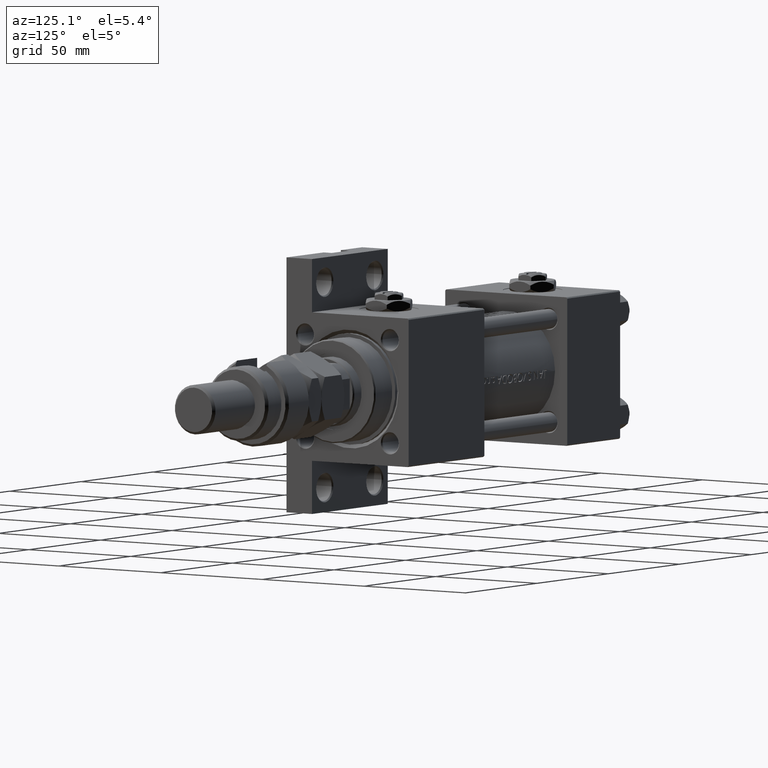
[diagram: clean part render]
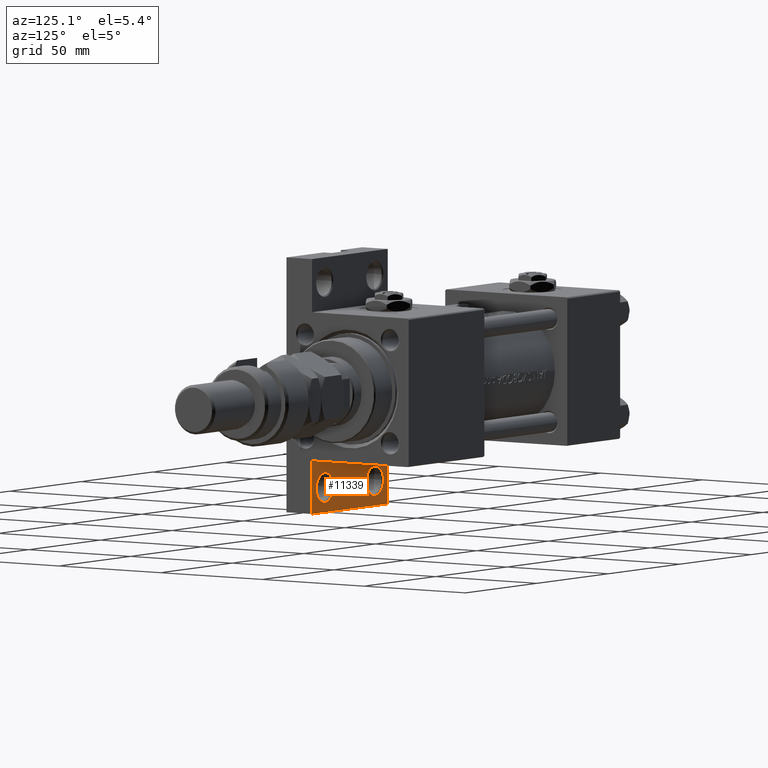
[diagram: same view with one face highlighted and labeled with its STEP entity id]
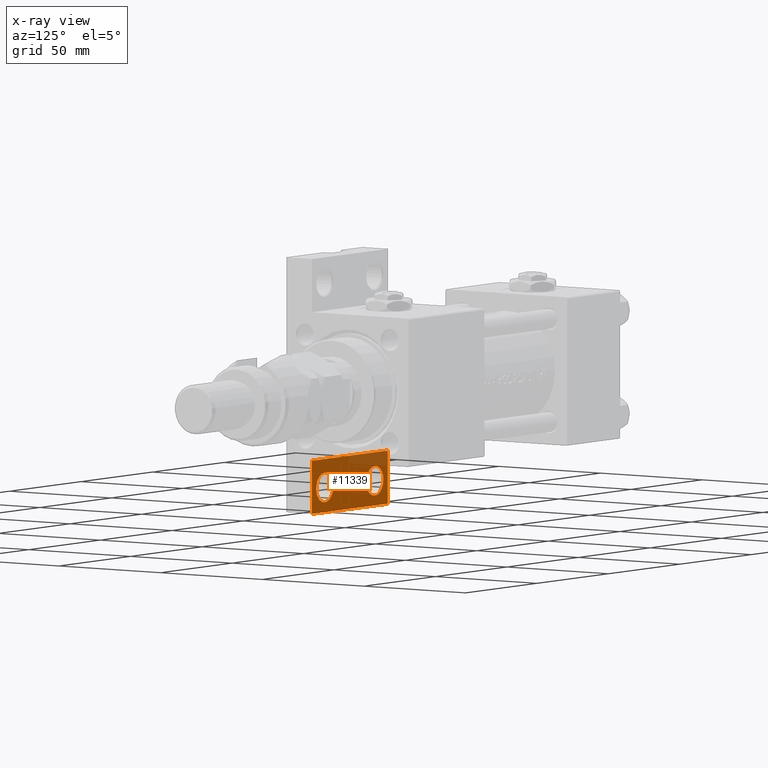
[diagram: x-ray of the same camera — body ghosted, the highlighted face saturated]
A machine part, auxiliary view. The second image highlights one B-rep face of the part: STEP entity #11339.
The next image is the same camera in x-ray: the body ghosted, the highlighted face saturated — about 14% of this face is hidden behind the body in this view.
In plain terms, the highlighted planar face has unit normal (0, 1, 0).
Its self-contained STEP definition (entity closure, byte-faithful):
#259 = CARTESIAN_POINT ( 'NONE',  ( 103.9999999999999574, 41.49999999999997868, -17.49999999999999645 ) ) ;
#338 = EDGE_CURVE ( 'NONE', #20517, #7865, #24972, .T. ) ;
#2018 = VECTOR ( 'NONE', #42343, 1000.000000000000000 ) ;
#2024 = CIRCLE ( 'NONE', #50520, 5.999499999999990507 ) ;
#2727 = FACE_OUTER_BOUND ( 'NONE', #5038, .T. ) ;
#4129 = LINE ( 'NONE', #9259, #49201 ) ;
#4459 = CIRCLE ( 'NONE', #28700, 5.999500000000018929 ) ;
#5038 = EDGE_LOOP ( 'NONE', ( #51811, #22753, #53639, #23121 ) ) ;
#7291 = DIRECTION ( 'NONE',  ( 1.000000000000000000, 0.000000000000000000, 0.000000000000000000 ) ) ;
#7865 = VERTEX_POINT ( 'NONE', #27782 ) ;
#9259 = CARTESIAN_POINT ( 'NONE',  ( 95.00000000000000000, 51.50000000000000711, -17.49999999999999645 ) ) ;
#9356 = CIRCLE ( 'NONE', #25817, 5.999500000000018929 ) ;
#10052 = ORIENTED_EDGE ( 'NONE', *, *, #47177, .T. ) ;
#10292 = DIRECTION ( 'NONE',  ( -0.000000000000000000, -0.000000000000000000, -1.000000000000000000 ) ) ;
#10533 = LINE ( 'NONE', #22740, #21822 ) ;
#10611 = CARTESIAN_POINT ( 'NONE',  ( 0.000000000000000000, 0.000000000000000000, -17.49999999999999645 ) ) ;
#11224 = EDGE_CURVE ( 'NONE', #13423, #20517, #18203, .T. ) ;
#11339 = ADVANCED_FACE ( 'NONE', ( #14678, #31214, #2727 ), #19273, .T. ) ;
#13199 = CARTESIAN_POINT ( 'NONE',  ( 148.0000000000000000, 29.99999999999999289, -17.49999999999999645 ) ) ;
#13404 = EDGE_LOOP ( 'NONE', ( #47742, #36266 ) ) ;
#13423 = VERTEX_POINT ( 'NONE', #23842 ) ;
#14678 = FACE_BOUND ( 'NONE', #40015, .T. ) ;
#15063 = CARTESIAN_POINT ( 'NONE',  ( 109.9994999999999692, 41.49999999999997868, -17.49999999999999645 ) ) ;
#15476 = EDGE_CURVE ( 'NONE', #7865, #27395, #4129, .T. ) ;
#15625 = EDGE_CURVE ( 'NONE', #42457, #47023, #9356, .T. ) ;
#16608 = DIRECTION ( 'NONE',  ( -0.000000000000000000, 1.000000000000000000, -0.000000000000000000 ) ) ;
#17617 = AXIS2_PLACEMENT_3D ( 'NONE', #10611, #43699, #23076 ) ;
#17675 = CARTESIAN_POINT ( 'NONE',  ( 148.0000000000000000, 51.49999999999999289, -17.49999999999999645 ) ) ;
#18203 = LINE ( 'NONE', #17675, #2018 ) ;
#18545 = DIRECTION ( 'NONE',  ( 1.000000000000000000, 0.000000000000000000, 0.000000000000000000 ) ) ;
#19273 = PLANE ( 'NONE',  #17617 ) ;
#20517 = VERTEX_POINT ( 'NONE', #13199 ) ;
#21822 = VECTOR ( 'NONE', #26542, 1000.000000000000000 ) ;
#22740 = CARTESIAN_POINT ( 'NONE',  ( 95.00000000000000000, 51.50000000000000711, -17.49999999999999645 ) ) ;
#22753 = ORIENTED_EDGE ( 'NONE', *, *, #338, .F. ) ;
#22920 = EDGE_CURVE ( 'NONE', #48476, #34001, #30297, .T. ) ;
#23076 = DIRECTION ( 'NONE',  ( 1.000000000000000000, 0.000000000000000000, -0.000000000000000000 ) ) ;
#23121 = ORIENTED_EDGE ( 'NONE', *, *, #27510, .F. ) ;
#23842 = CARTESIAN_POINT ( 'NONE',  ( 148.0000000000000000, 51.49999999999999289, -17.49999999999999645 ) ) ;
#24972 = LINE ( 'NONE', #28781, #35388 ) ;
#25817 = AXIS2_PLACEMENT_3D ( 'NONE', #259, #37424, #38687 ) ;
#26542 = DIRECTION ( 'NONE',  ( 1.000000000000000000, -2.618450529776313247E-16, 0.000000000000000000 ) ) ;
#27395 = VERTEX_POINT ( 'NONE', #50935 ) ;
#27510 = EDGE_CURVE ( 'NONE', #27395, #13423, #10533, .T. ) ;
#27782 = CARTESIAN_POINT ( 'NONE',  ( 95.00000000000000000, 30.00000000000000000, -17.49999999999998224 ) ) ;
#28700 = AXIS2_PLACEMENT_3D ( 'NONE', #39153, #51619, #18545 ) ;
#28781 = CARTESIAN_POINT ( 'NONE',  ( 95.00000000000000000, 30.00000000000000000, -17.49999999999999645 ) ) ;
#30297 = CIRCLE ( 'NONE', #44172, 5.999499999999990507 ) ;
#31214 = FACE_BOUND ( 'NONE', #13404, .T. ) ;
#33009 = CARTESIAN_POINT ( 'NONE',  ( 138.9999999999999432, 41.50000000000000000, -17.49999999999999645 ) ) ;
#33414 = CARTESIAN_POINT ( 'NONE',  ( 98.00049999999993133, 41.49999999999997868, -17.49999999999999645 ) ) ;
#34001 = VERTEX_POINT ( 'NONE', #43468 ) ;
#35388 = VECTOR ( 'NONE', #49382, 1000.000000000000000 ) ;
#36266 = ORIENTED_EDGE ( 'NONE', *, *, #43499, .T. ) ;
#37424 = DIRECTION ( 'NONE',  ( -0.000000000000000000, -0.000000000000000000, -1.000000000000000000 ) ) ;
#38687 = DIRECTION ( 'NONE',  ( 1.000000000000000000, 0.000000000000000000, 0.000000000000000000 ) ) ;
#38698 = CARTESIAN_POINT ( 'NONE',  ( 133.0004999999999598, 41.50000000000000000, -17.49999999999999645 ) ) ;
#39153 = CARTESIAN_POINT ( 'NONE',  ( 103.9999999999999574, 41.49999999999997868, -17.49999999999999645 ) ) ;
#40015 = EDGE_LOOP ( 'NONE', ( #10052, #47226 ) ) ;
#42343 = DIRECTION ( 'NONE',  ( 0.000000000000000000, -1.000000000000000000, 0.000000000000000000 ) ) ;
#42457 = VERTEX_POINT ( 'NONE', #15063 ) ;
#43468 = CARTESIAN_POINT ( 'NONE',  ( 144.9994999999999550, 41.50000000000000000, -17.49999999999999645 ) ) ;
#43499 = EDGE_CURVE ( 'NONE', #47023, #42457, #4459, .T. ) ;
#43699 = DIRECTION ( 'NONE',  ( 0.000000000000000000, 0.000000000000000000, 1.000000000000000000 ) ) ;
#44172 = AXIS2_PLACEMENT_3D ( 'NONE', #44462, #10292, #7291 ) ;
#44462 = CARTESIAN_POINT ( 'NONE',  ( 138.9999999999999432, 41.50000000000000000, -17.49999999999999645 ) ) ;
#47023 = VERTEX_POINT ( 'NONE', #33414 ) ;
#47177 = EDGE_CURVE ( 'NONE', #34001, #48476, #2024, .T. ) ;
#47226 = ORIENTED_EDGE ( 'NONE', *, *, #22920, .T. ) ;
#47742 = ORIENTED_EDGE ( 'NONE', *, *, #15625, .T. ) ;
#48476 = VERTEX_POINT ( 'NONE', #38698 ) ;
#48552 = DIRECTION ( 'NONE',  ( -0.000000000000000000, -0.000000000000000000, -1.000000000000000000 ) ) ;
#49201 = VECTOR ( 'NONE', #16608, 1000.000000000000000 ) ;
#49382 = DIRECTION ( 'NONE',  ( -1.000000000000000000, 1.309225264888156623E-16, -0.000000000000000000 ) ) ;
#49551 = DIRECTION ( 'NONE',  ( 1.000000000000000000, 0.000000000000000000, 0.000000000000000000 ) ) ;
#50520 = AXIS2_PLACEMENT_3D ( 'NONE', #33009, #48552, #49551 ) ;
#50935 = CARTESIAN_POINT ( 'NONE',  ( 95.00000000000000000, 51.50000000000000711, -17.49999999999999645 ) ) ;
#51619 = DIRECTION ( 'NONE',  ( -0.000000000000000000, -0.000000000000000000, -1.000000000000000000 ) ) ;
#51811 = ORIENTED_EDGE ( 'NONE', *, *, #15476, .F. ) ;
#53639 = ORIENTED_EDGE ( 'NONE', *, *, #11224, .F. ) ;